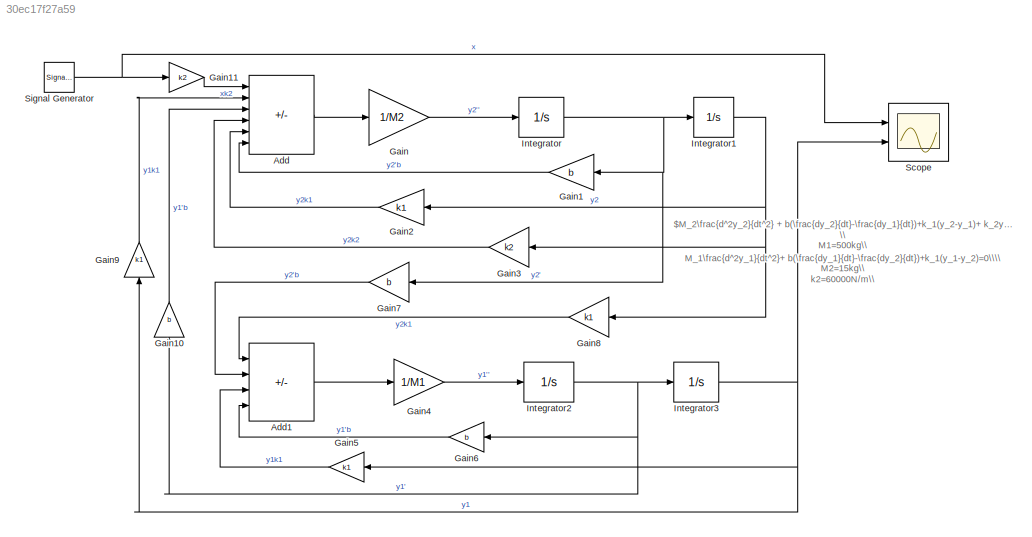
MODEL slx_30ec17f27a59
KIND model
CONFIG AbsTol = auto
CONFIG EnableMultiTasking = off
CONFIG FixedStep = auto
CONFIG MaxStep = auto
CONFIG MinStep = auto
CONFIG RelTol = 1e-3
CONFIG SampleTimeConstraint = Unconstrained
CONFIG SolverName = VariableStepAuto
CONFIG StartTime = 0.0
CONFIG StopTime = 100
BLOCK [Sum] Add
  IconShape = rectangular
  Inputs = +++---
  Ports = [6, 1]
BLOCK [Sum] Add1
  IconShape = rectangular
  Inputs = ++--
  Ports = [4, 1]
BLOCK [Gain] Gain
  Gain = 1/M2
BLOCK [Gain] Gain1
  Gain = b
  NameLocation = top
BLOCK [Gain] Gain10
  Gain = b
  NameLocation = right
BLOCK [Gain] Gain11
  Gain = k2
BLOCK [Gain] Gain2
  Gain = k1
  NameLocation = top
BLOCK [Gain] Gain3
  Gain = k2
  NameLocation = top
BLOCK [Gain] Gain4
  Gain = 1/M1
BLOCK [Gain] Gain5
  Gain = k1
  NameLocation = top
BLOCK [Gain] Gain6
  Gain = b
  NameLocation = top
BLOCK [Gain] Gain7
  Gain = b
  NameLocation = top
BLOCK [Gain] Gain8
  Gain = k1
  NameLocation = top
BLOCK [Gain] Gain9
  Gain = k1
  NameLocation = right
BLOCK [Integrator] Integrator
  Ports = [1, 1]
BLOCK [Integrator] Integrator1
  Ports = [1, 1]
BLOCK [Integrator] Integrator2
  Ports = [1, 1]
BLOCK [Integrator] Integrator3
  Ports = [1, 1]
BLOCK [Scope] Scope
  Floating = off
  NumInputPorts = 2
  Ports = [2]
  ScopeSpecificationString = Simulink.scopes.TimeScopeBlockCfg('CurrentConfiguration', extmgr.ConfigurationSet(extmgr.Configuration('Core','General UI',true),extmgr.Configuration('Core','Source UI',true),extmgr.Configuration('Sources','WiredSimulink',true),extmgr.Configuration('Visuals','Time Domain',true,'SerializedDisplays',{struct('MinYLimReal','-1.25','MaxYLimReal','1.25','YLabelReal','','MinYLimMag','0.00000','MaxYLimMag...<+2022ch>
BLOCK [SignalGenerator] Signal Generator
  Frequency = 0.5
  Ports = [0, 1]
  Units = rad/sec
ANNOTATION (root): $M_2\frac{d^2y_2}{dt^2} + b(\frac{dy_2}{dt}-\frac{dy_1}{dt})+k_1(y_2-y_1)+ k_2y_2= k_2x \\ M_1\frac{d^2y_1}{dt^2}+ b(\frac{dy_1}{dt}-\frac{dy_2}{dt})+k_1(y_1-y_2)=0\\\\ M1=500kg\\ M2=15kg\\ k2=60000N/m\\ k1=35000N/m\\ b=7500Ns/m$
LINE Add1:1 -> Gain4:1
LINE Add:1 -> Gain:1
LINE Gain10:1 -> Add:3
LINE Gain11:1 -> Add:1
LINE Gain1:1 -> Add:6
LINE Gain2:1 -> Add:5
LINE Gain3:1 -> Add:4
LINE Gain4:1 -> Integrator2:1
LINE Gain5:1 -> Add1:3
LINE Gain6:1 -> Add1:4
LINE Gain7:1 -> Add1:2
LINE Gain8:1 -> Add1:1
LINE Gain9:1 -> Add:2
LINE Gain:1 -> Integrator:1
NET Integrator1:1 -> Gain2:1, Gain3:1, Gain8:1
NET Integrator2:1 -> Gain10:1, Gain6:1, Integrator3:1
NET Integrator3:1 -> Gain5:1, Gain9:1, Scope:2
NET Integrator:1 -> Gain1:1, Gain7:1, Integrator1:1
NET Signal Generator:1 -> Gain11:1, Scope:1
note: NET lines group one-source signal fan-out (src -> all destinations, sorted); 1:1 wires keep LINE
